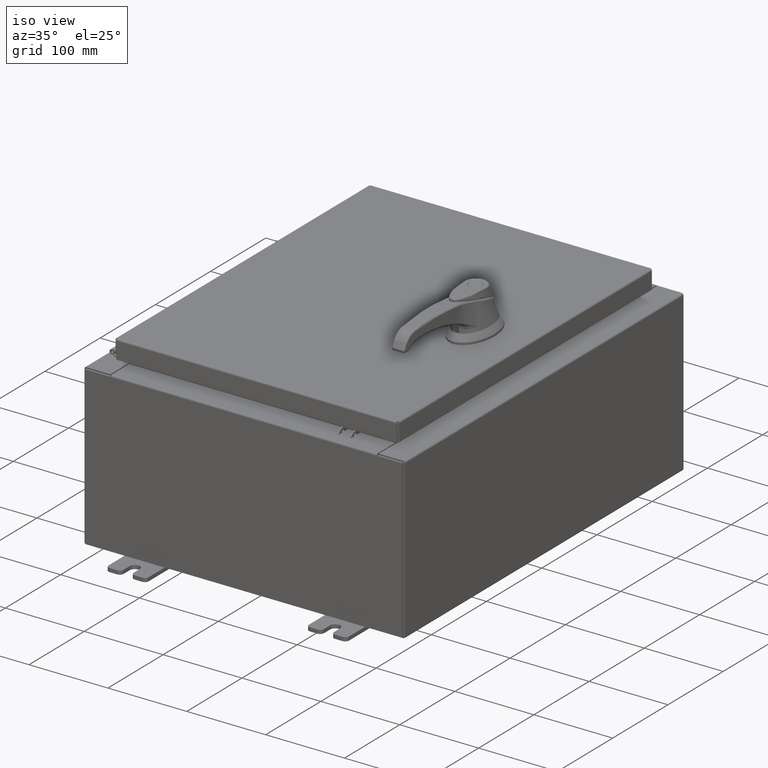
[diagram: clean part render]
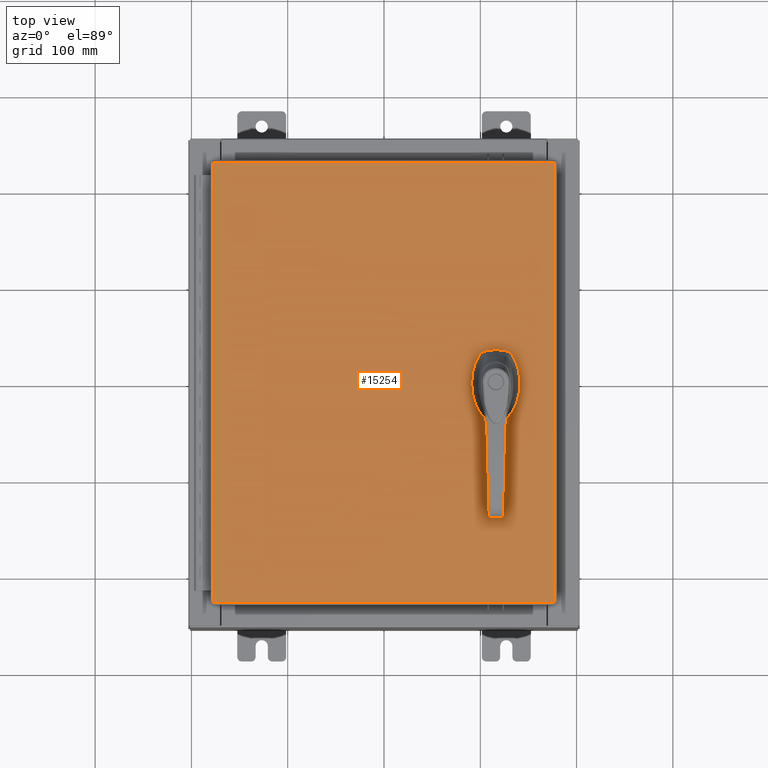
[diagram: tour spotlight — one face highlighted and labeled with its STEP entity id]
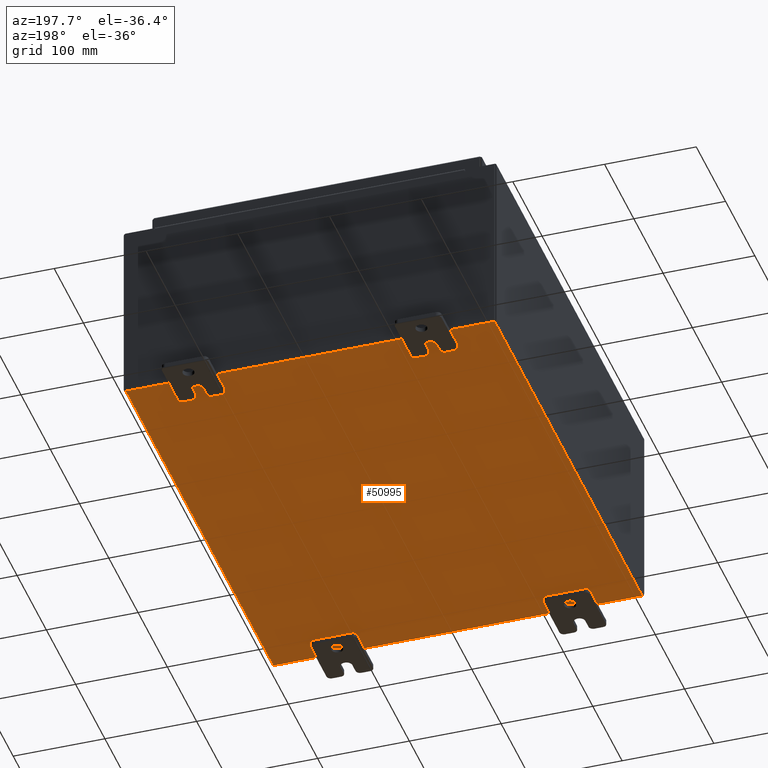
[diagram: tour spotlight — one face highlighted and labeled with its STEP entity id]
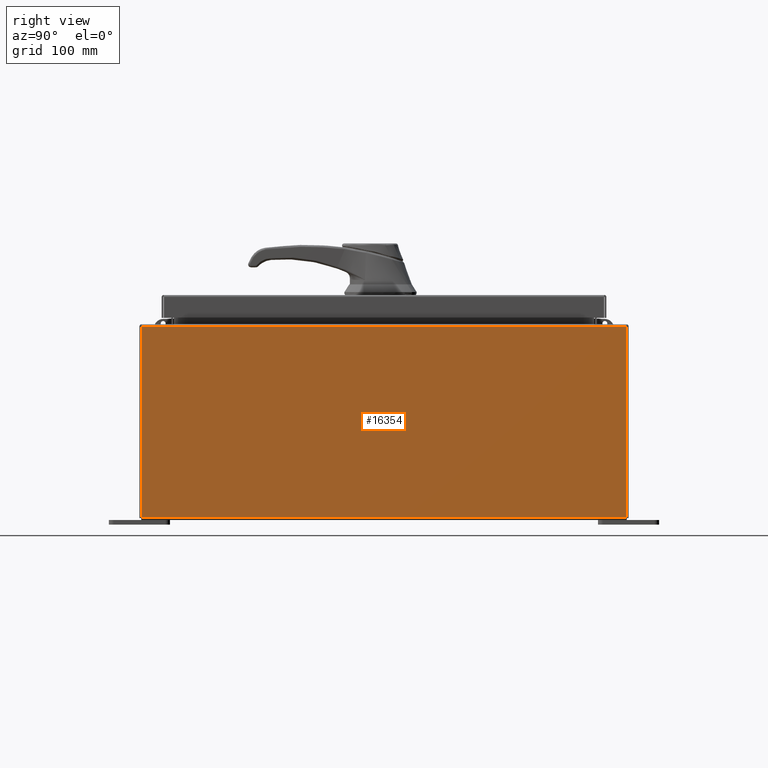
[diagram: tour spotlight — one face highlighted and labeled with its STEP entity id]
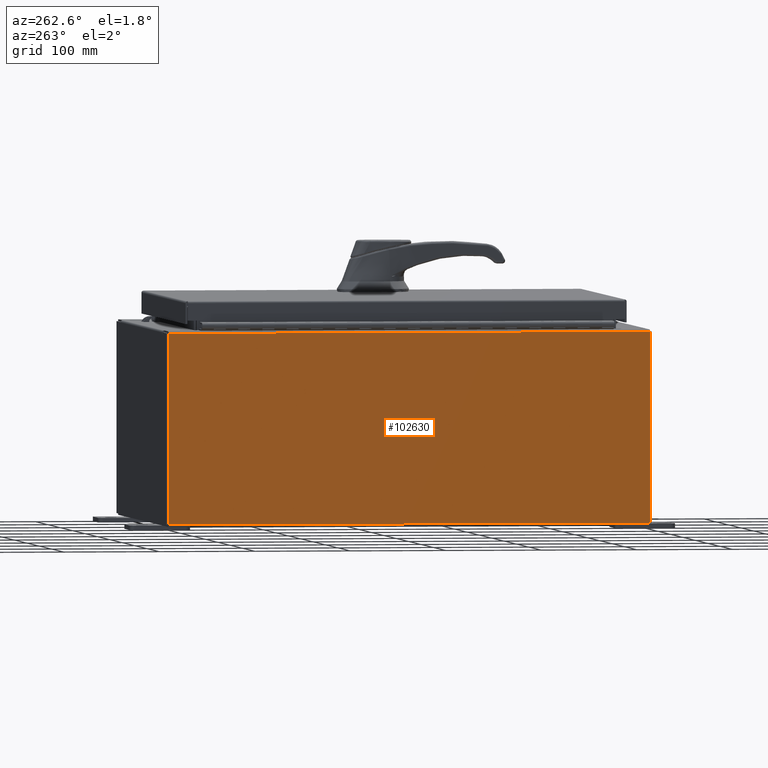
[diagram: tour spotlight — one face highlighted and labeled with its STEP entity id]
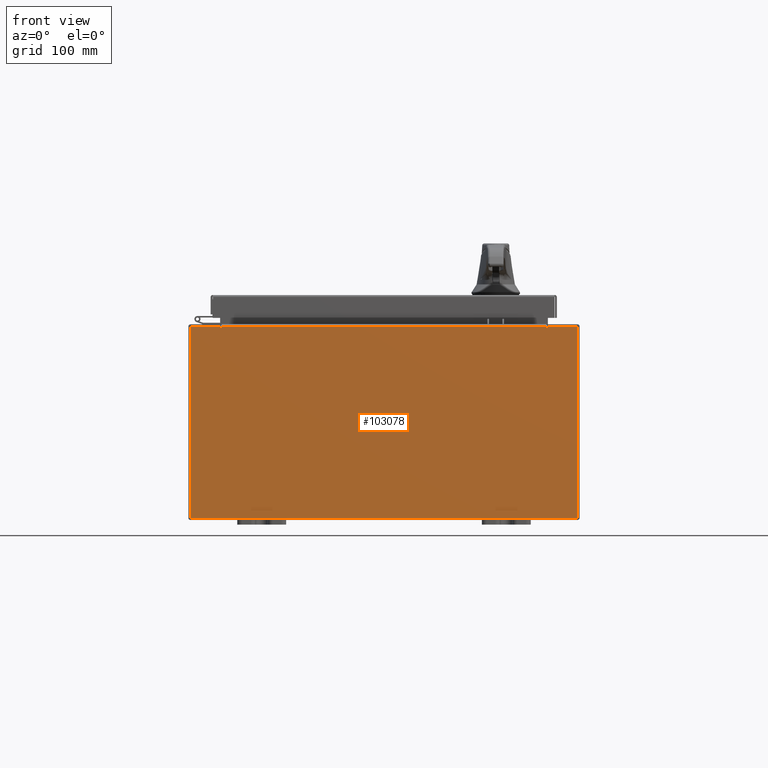
[diagram: tour spotlight — one face highlighted and labeled with its STEP entity id]
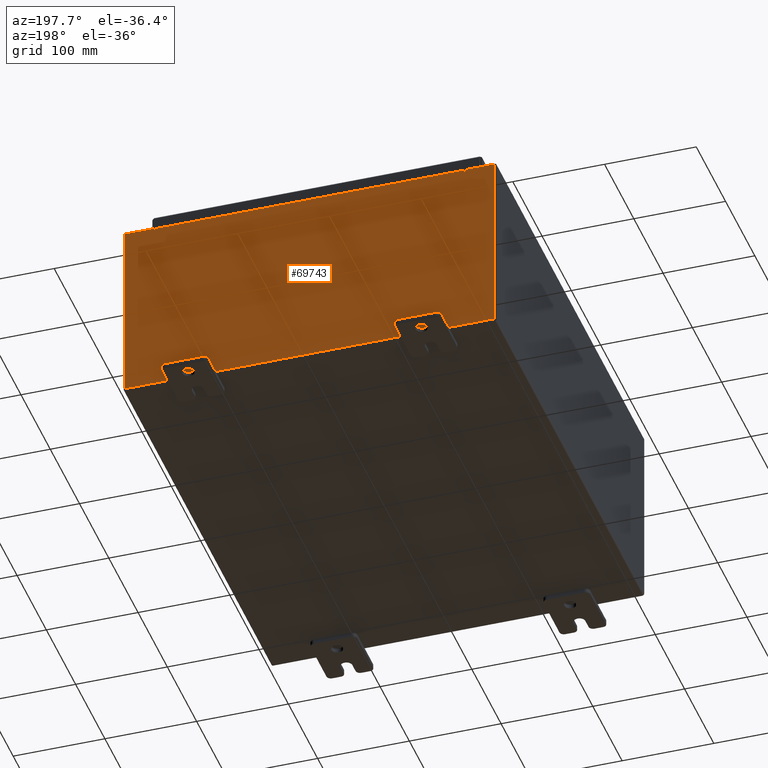
[diagram: tour spotlight — one face highlighted and labeled with its STEP entity id]
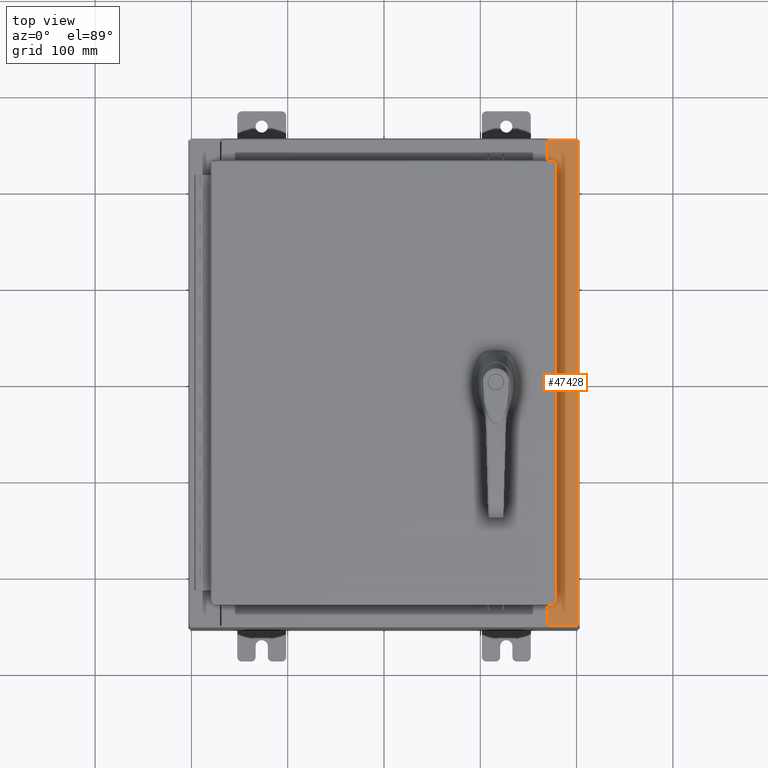
[diagram: tour spotlight — one face highlighted and labeled with its STEP entity id]
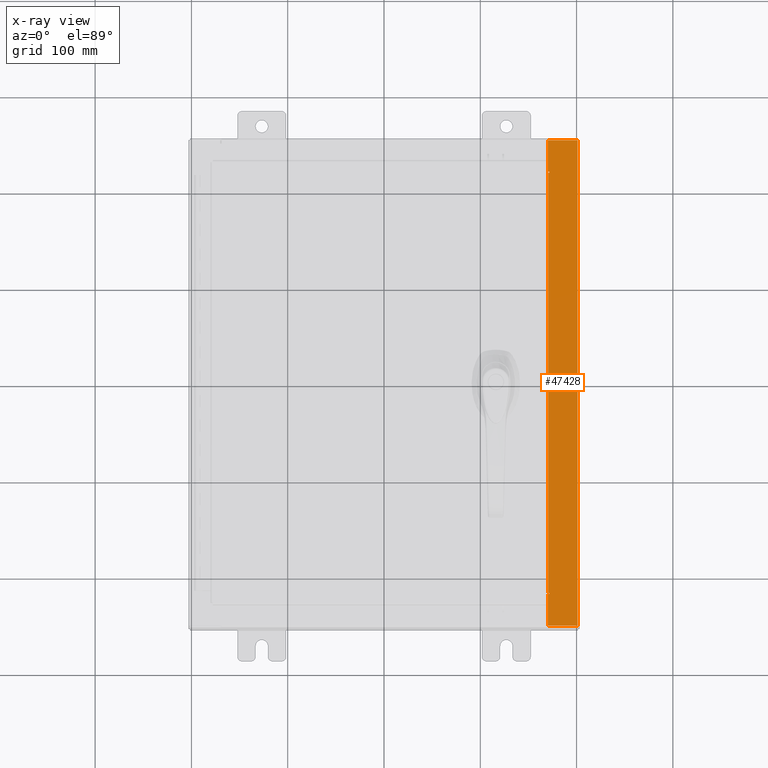
[diagram: x-ray of the same camera — body ghosted, this tour face saturated]
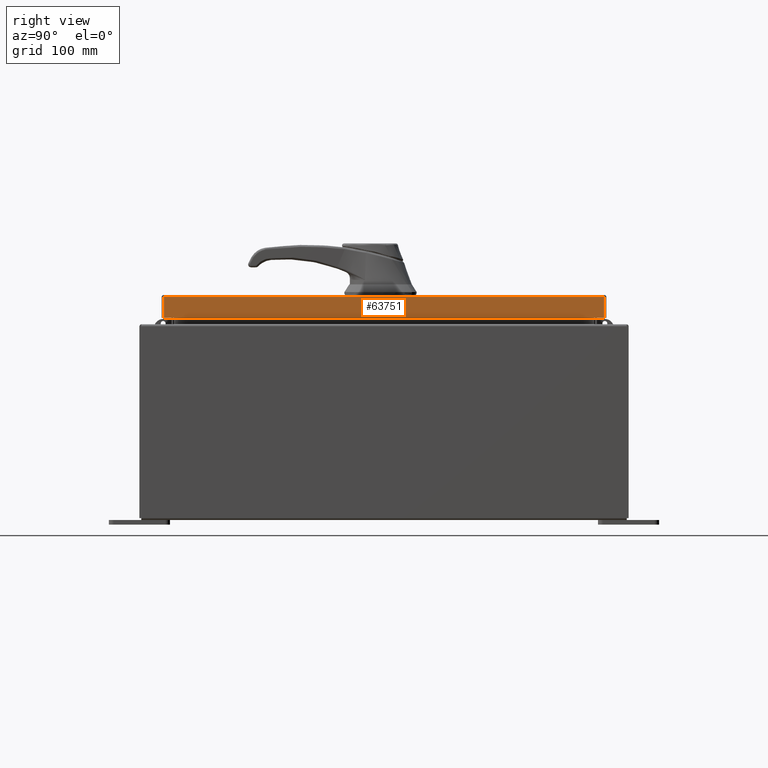
[diagram: tour spotlight — one face highlighted and labeled with its STEP entity id]
A machine part: a face-by-face anatomy tour. The part has 2316 B-rep faces; the first image is the clean iso view, then the 8 largest visible faces are spotlighted one at a time (largest first), each with its STEP entity span.

Face 1 — top view, entity #15254. In plain terms, the highlighted planar face has unit normal (0, 0, -1).
Definition (entity closure, byte-faithful):
#838 = CARTESIAN_POINT ( 'NONE',  ( 4.377772629243692900, 0.4029999999999252000, 0.0000000000000000000 ) ) ;
#1784 = FACE_BOUND ( 'NONE', #92221, .T. ) ;
#2299 = VECTOR ( 'NONE', #79332, 39.37007874015748100 ) ;
#2374 = LINE ( 'NONE', #60142, #44583 ) ;
#4788 = VERTEX_POINT ( 'NONE', #838 ) ;
#4910 = LINE ( 'NONE', #28449, #2299 ) ;
#5235 = CARTESIAN_POINT ( 'NONE',  ( 4.578000000000002100, 0.0000000000000000000, 0.0000000000000000000 ) ) ;
#5384 = CIRCLE ( 'NONE', #21046, 0.4499999999999156900 ) ;
#6332 = ORIENTED_EDGE ( 'NONE', *, *, #87902, .F. ) ;
#6426 = VERTEX_POINT ( 'NONE', #19562 ) ;
#6888 = DIRECTION ( 'NONE',  ( 0.0000000000000000000, -1.000000000000000000, 0.0000000000000000000 ) ) ;
#7138 = CARTESIAN_POINT ( 'NONE',  ( 6.990300000000002200, 9.006300000000001300, -7.683322482180740400E-016 ) ) ;
#11838 = CARTESIAN_POINT ( 'NONE',  ( -6.990299999999997700, 9.006300000000001300, -2.048885995248197400E-016 ) ) ;
#11924 = CIRCLE ( 'NONE', #13941, 0.4499999999999156900 ) ;
#12631 = EDGE_CURVE ( 'NONE', #30866, #108138, #55210, .T. ) ;
#13635 = AXIS2_PLACEMENT_3D ( 'NONE', #79661, #29171, #88155 ) ;
#13689 = DIRECTION ( 'NONE',  ( 1.000000000000000000, 0.0000000000000000000, 0.0000000000000000000 ) ) ;
#13941 = AXIS2_PLACEMENT_3D ( 'NONE', #26086, #85113, #34580 ) ;
#14770 = DIRECTION ( 'NONE',  ( -0.0000000000000000000, 0.0000000000000000000, 1.000000000000000000 ) ) ;
#15065 = CARTESIAN_POINT ( 'NONE',  ( 6.990300000000002200, -9.006299999999997800, -2.219626494852214000E-016 ) ) ;
#15254 = ADVANCED_FACE ( 'NONE', ( #41345, #86212, #1784 ), #82752, .F. ) ;
#18044 = AXIS2_PLACEMENT_3D ( 'NONE', #65848, #40746, #99706 ) ;
#18453 = CARTESIAN_POINT ( 'NONE',  ( 4.578000000000002100, -1.338000000000000100, 0.0000000000000000000 ) ) ;
#19324 = VERTEX_POINT ( 'NONE', #52935 ) ;
#19562 = CARTESIAN_POINT ( 'NONE',  ( -6.990299999999997700, -9.006299999999997800, -2.219626494852214000E-016 ) ) ;
#20085 = EDGE_CURVE ( 'NONE', #4788, #76864, #11924, .T. ) ;
#20941 = EDGE_CURVE ( 'NONE', #62381, #23120, #42236, .T. ) ;
#21046 = AXIS2_PLACEMENT_3D ( 'NONE', #5235, #64243, #13689 ) ;
#22111 = CIRCLE ( 'NONE', #75754, 0.1715000000000000700 ) ;
#23120 = VERTEX_POINT ( 'NONE', #40098 ) ;
#23211 = LINE ( 'NONE', #25675, #40385 ) ;
#24541 = ORIENTED_EDGE ( 'NONE', *, *, #25817, .F. ) ;
#25675 = CARTESIAN_POINT ( 'NONE',  ( 0.0000000000000000000, -0.4029999999999252000, 0.0000000000000000000 ) ) ;
#25817 = EDGE_CURVE ( 'NONE', #92862, #98283, #35019, .T. ) ;
#26086 = CARTESIAN_POINT ( 'NONE',  ( 4.578000000000002100, 0.0000000000000000000, 0.0000000000000000000 ) ) ;
#26901 = DIRECTION ( 'NONE',  ( 1.000000000000000000, 0.0000000000000000000, 0.0000000000000000000 ) ) ;
#28022 = EDGE_CURVE ( 'NONE', #83008, #80222, #79630, .T. ) ;
#28449 = CARTESIAN_POINT ( 'NONE',  ( 6.990300000000002200, -9.006299999999997800, -2.219626494852214000E-016 ) ) ;
#29171 = DIRECTION ( 'NONE',  ( -0.0000000000000000000, 0.0000000000000000000, 1.000000000000000000 ) ) ;
#29512 = CARTESIAN_POINT ( 'NONE',  ( 4.980999999999927900, -0.2002273707563079800, 0.0000000000000000000 ) ) ;
#30866 = VERTEX_POINT ( 'NONE', #65823 ) ;
#33234 = ORIENTED_EDGE ( 'NONE', *, *, #20941, .T. ) ;
#34009 = CARTESIAN_POINT ( 'NONE',  ( 4.578000000000002100, 0.0000000000000000000, 0.0000000000000000000 ) ) ;
#34580 = DIRECTION ( 'NONE',  ( 1.000000000000000000, 0.0000000000000000000, 0.0000000000000000000 ) ) ;
#35019 = CIRCLE ( 'NONE', #69426, 0.1715000000000000700 ) ;
#38592 = CARTESIAN_POINT ( 'NONE',  ( -6.990299999999997700, -9.006299999999997800, -2.219626494852214000E-016 ) ) ;
#40098 = CARTESIAN_POINT ( 'NONE',  ( -6.990299999999997700, 9.006300000000001300, -2.048885995248197400E-016 ) ) ;
#40385 = VECTOR ( 'NONE', #76165, 39.37007874015748100 ) ;
#40746 = DIRECTION ( 'NONE',  ( 0.0000000000000000000, 0.0000000000000000000, -1.000000000000000000 ) ) ;
#41345 = FACE_BOUND ( 'NONE', #55603, .T. ) ;
#41562 = EDGE_CURVE ( 'NONE', #99109, #4788, #91032, .T. ) ;
#41957 = CARTESIAN_POINT ( 'NONE',  ( 6.990300000000002200, 9.006300000000001300, -7.683322482180740400E-016 ) ) ;
#42007 = VERTEX_POINT ( 'NONE', #15065 ) ;
#42236 = LINE ( 'NONE', #41957, #104222 ) ;
#42504 = DIRECTION ( 'NONE',  ( 1.000000000000000000, 0.0000000000000000000, 0.0000000000000000000 ) ) ;
#44583 = VECTOR ( 'NONE', #68634, 39.37007874015748100 ) ;
#45190 = VECTOR ( 'NONE', #106069, 39.37007874015748100 ) ;
#48811 = EDGE_CURVE ( 'NONE', #6426, #42007, #70261, .T. ) ;
#49494 = CARTESIAN_POINT ( 'NONE',  ( 4.406500000000002100, -1.338000000000000100, 0.0000000000000000000 ) ) ;
#50784 = ORIENTED_EDGE ( 'NONE', *, *, #86371, .T. ) ;
#52935 = CARTESIAN_POINT ( 'NONE',  ( 4.778227370756312100, -0.4029999999999252000, 0.0000000000000000000 ) ) ;
#53566 = DIRECTION ( 'NONE',  ( 0.0000000000000000000, -1.000000000000000000, 0.0000000000000000000 ) ) ;
#55210 = CIRCLE ( 'NONE', #13635, 0.4499999999999156900 ) ;
#55290 = ORIENTED_EDGE ( 'NONE', *, *, #20085, .F. ) ;
#55603 = EDGE_LOOP ( 'NONE', ( #24541, #86885 ) ) ;
#56206 = CIRCLE ( 'NONE', #84845, 0.4499999999999156900 ) ;
#56360 = ORIENTED_EDGE ( 'NONE', *, *, #48811, .T. ) ;
#57235 = VECTOR ( 'NONE', #6888, 39.37007874015748100 ) ;
#58319 = ORIENTED_EDGE ( 'NONE', *, *, #12631, .F. ) ;
#60142 = CARTESIAN_POINT ( 'NONE',  ( 4.175000000000076200, 0.0000000000000000000, 0.0000000000000000000 ) ) ;
#60820 = EDGE_CURVE ( 'NONE', #19324, #80222, #5384, .T. ) ;
#61858 = VECTOR ( 'NONE', #53566, 39.37007874015748100 ) ;
#62381 = VERTEX_POINT ( 'NONE', #7138 ) ;
#64243 = DIRECTION ( 'NONE',  ( -0.0000000000000000000, 0.0000000000000000000, 1.000000000000000000 ) ) ;
#65048 = EDGE_CURVE ( 'NONE', #23120, #6426, #106679, .T. ) ;
#65339 = CARTESIAN_POINT ( 'NONE',  ( 4.578000000000002100, -1.338000000000000100, 0.0000000000000000000 ) ) ;
#65823 = CARTESIAN_POINT ( 'NONE',  ( 4.175000000000076200, -0.2002273707563079800, 0.0000000000000000000 ) ) ;
#65848 = CARTESIAN_POINT ( 'NONE',  ( 0.0000000000000000000, 0.0000000000000000000, 0.0000000000000000000 ) ) ;
#66250 = CARTESIAN_POINT ( 'NONE',  ( 4.778227370756312100, 0.4029999999999252000, 0.0000000000000000000 ) ) ;
#66897 = ORIENTED_EDGE ( 'NONE', *, *, #41562, .F. ) ;
#67087 = ORIENTED_EDGE ( 'NONE', *, *, #28022, .T. ) ;
#67426 = DIRECTION ( 'NONE',  ( -1.000000000000000000, -0.0000000000000000000, -0.0000000000000000000 ) ) ;
#68634 = DIRECTION ( 'NONE',  ( 0.0000000000000000000, -1.000000000000000000, 0.0000000000000000000 ) ) ;
#69332 = ORIENTED_EDGE ( 'NONE', *, *, #79797, .F. ) ;
#69426 = AXIS2_PLACEMENT_3D ( 'NONE', #65339, #14770, #73766 ) ;
#70261 = LINE ( 'NONE', #38592, #45190 ) ;
#73766 = DIRECTION ( 'NONE',  ( 1.000000000000000000, 0.0000000000000000000, 0.0000000000000000000 ) ) ;
#75754 = AXIS2_PLACEMENT_3D ( 'NONE', #18453, #77393, #26901 ) ;
#76165 = DIRECTION ( 'NONE',  ( 1.000000000000000000, 0.0000000000000000000, 0.0000000000000000000 ) ) ;
#76800 = EDGE_LOOP ( 'NONE', ( #56360, #50784, #33234, #88407 ) ) ;
#76864 = VERTEX_POINT ( 'NONE', #97192 ) ;
#77393 = DIRECTION ( 'NONE',  ( -0.0000000000000000000, 0.0000000000000000000, 1.000000000000000000 ) ) ;
#79332 = DIRECTION ( 'NONE',  ( 0.0000000000000000000, 1.000000000000000000, 0.0000000000000000000 ) ) ;
#79630 = LINE ( 'NONE', #107591, #57235 ) ;
#79661 = CARTESIAN_POINT ( 'NONE',  ( 4.578000000000002100, 0.0000000000000000000, 0.0000000000000000000 ) ) ;
#79797 = EDGE_CURVE ( 'NONE', #83008, #99109, #56206, .T. ) ;
#80222 = VERTEX_POINT ( 'NONE', #29512 ) ;
#81571 = ORIENTED_EDGE ( 'NONE', *, *, #108156, .F. ) ;
#82240 = CARTESIAN_POINT ( 'NONE',  ( 4.749500000000002100, -1.338000000000000100, 0.0000000000000000000 ) ) ;
#82752 = PLANE ( 'NONE',  #18044 ) ;
#83008 = VERTEX_POINT ( 'NONE', #92264 ) ;
#84845 = AXIS2_PLACEMENT_3D ( 'NONE', #34009, #92972, #42504 ) ;
#85113 = DIRECTION ( 'NONE',  ( -0.0000000000000000000, 0.0000000000000000000, 1.000000000000000000 ) ) ;
#85196 = CARTESIAN_POINT ( 'NONE',  ( 4.377772629243692900, -0.4029999999999252000, 0.0000000000000000000 ) ) ;
#86212 = FACE_OUTER_BOUND ( 'NONE', #76800, .T. ) ;
#86371 = EDGE_CURVE ( 'NONE', #42007, #62381, #4910, .T. ) ;
#86885 = ORIENTED_EDGE ( 'NONE', *, *, #108175, .F. ) ;
#87902 = EDGE_CURVE ( 'NONE', #108138, #19324, #23211, .T. ) ;
#88155 = DIRECTION ( 'NONE',  ( 1.000000000000000000, 0.0000000000000000000, 0.0000000000000000000 ) ) ;
#88397 = VECTOR ( 'NONE', #100721, 39.37007874015748100 ) ;
#88407 = ORIENTED_EDGE ( 'NONE', *, *, #65048, .T. ) ;
#91032 = LINE ( 'NONE', #109219, #88397 ) ;
#92221 = EDGE_LOOP ( 'NONE', ( #67087, #103269, #6332, #58319, #81571, #55290, #66897, #69332 ) ) ;
#92264 = CARTESIAN_POINT ( 'NONE',  ( 4.980999999999927900, 0.2002273707563080300, 0.0000000000000000000 ) ) ;
#92862 = VERTEX_POINT ( 'NONE', #82240 ) ;
#92972 = DIRECTION ( 'NONE',  ( -0.0000000000000000000, 0.0000000000000000000, 1.000000000000000000 ) ) ;
#97192 = CARTESIAN_POINT ( 'NONE',  ( 4.175000000000076200, 0.2002273707563079800, 0.0000000000000000000 ) ) ;
#98283 = VERTEX_POINT ( 'NONE', #49494 ) ;
#99109 = VERTEX_POINT ( 'NONE', #66250 ) ;
#99706 = DIRECTION ( 'NONE',  ( -1.000000000000000000, 0.0000000000000000000, -0.0000000000000000000 ) ) ;
#100721 = DIRECTION ( 'NONE',  ( -1.000000000000000000, 0.0000000000000000000, 0.0000000000000000000 ) ) ;
#103269 = ORIENTED_EDGE ( 'NONE', *, *, #60820, .F. ) ;
#104222 = VECTOR ( 'NONE', #67426, 39.37007874015748100 ) ;
#106069 = DIRECTION ( 'NONE',  ( 1.000000000000000000, -0.0000000000000000000, -0.0000000000000000000 ) ) ;
#106679 = LINE ( 'NONE', #11838, #61858 ) ;
#107591 = CARTESIAN_POINT ( 'NONE',  ( 4.980999999999927900, 0.0000000000000000000, 0.0000000000000000000 ) ) ;
#108138 = VERTEX_POINT ( 'NONE', #85196 ) ;
#108156 = EDGE_CURVE ( 'NONE', #76864, #30866, #2374, .T. ) ;
#108175 = EDGE_CURVE ( 'NONE', #98283, #92862, #22111, .T. ) ;
#109219 = CARTESIAN_POINT ( 'NONE',  ( 0.0000000000000000000, 0.4029999999999252000, 0.0000000000000000000 ) ) ;

Face 2 — auxiliary view, entity #50995. In plain terms, the highlighted planar face has unit normal (0, 0, -1).
Definition (entity closure, byte-faithful):
#3492 = VECTOR ( 'NONE', #72826, 39.37007874015748100 ) ;
#7605 = DIRECTION ( 'NONE',  ( 1.000000000000000000, 0.0000000000000000000, 0.0000000000000000000 ) ) ;
#7931 = VERTEX_POINT ( 'NONE', #33308 ) ;
#18070 = ORIENTED_EDGE ( 'NONE', *, *, #65032, .T. ) ;
#19593 = LINE ( 'NONE', #104430, #109357 ) ;
#19626 = AXIS2_PLACEMENT_3D ( 'NONE', #99999, #49541, #108533 ) ;
#23285 = EDGE_CURVE ( 'NONE', #101616, #29705, #80166, .T. ) ;
#24057 = PLANE ( 'NONE',  #19626 ) ;
#24579 = CARTESIAN_POINT ( 'NONE',  ( -7.999999999999997300, -9.925300000000001800, -0.07470000000000000300 ) ) ;
#29705 = VERTEX_POINT ( 'NONE', #57214 ) ;
#33308 = CARTESIAN_POINT ( 'NONE',  ( 7.912300000000001900, 9.925299999999996500, -0.07469999999999994700 ) ) ;
#38285 = ORIENTED_EDGE ( 'NONE', *, *, #79042, .F. ) ;
#38398 = VECTOR ( 'NONE', #105862, 39.37007874015748100 ) ;
#44197 = ORIENTED_EDGE ( 'NONE', *, *, #50509, .T. ) ;
#45418 = DIRECTION ( 'NONE',  ( -0.0000000000000000000, -1.000000000000000000, -0.0000000000000000000 ) ) ;
#49541 = DIRECTION ( 'NONE',  ( 0.0000000000000000000, 0.0000000000000000000, -1.000000000000000000 ) ) ;
#50509 = EDGE_CURVE ( 'NONE', #101616, #58705, #63493, .T. ) ;
#50995 = ADVANCED_FACE ( 'NONE', ( #93727 ), #24057, .T. ) ;
#54716 = CARTESIAN_POINT ( 'NONE',  ( -7.912299999999997400, 9.925299999999998200, -0.07470000000000000300 ) ) ;
#57214 = CARTESIAN_POINT ( 'NONE',  ( 7.912300000000001900, -9.925300000000001800, -0.07470000000000000300 ) ) ;
#58705 = VERTEX_POINT ( 'NONE', #54716 ) ;
#63493 = LINE ( 'NONE', #97346, #38398 ) ;
#64376 = CARTESIAN_POINT ( 'NONE',  ( -7.999999999999997300, 9.925299999999998200, -0.07470000000000000300 ) ) ;
#65032 = EDGE_CURVE ( 'NONE', #7931, #29705, #19593, .T. ) ;
#70813 = LINE ( 'NONE', #64376, #3492 ) ;
#72826 = DIRECTION ( 'NONE',  ( -1.000000000000000000, -0.0000000000000000000, -0.0000000000000000000 ) ) ;
#77509 = VECTOR ( 'NONE', #7605, 39.37007874015748100 ) ;
#79042 = EDGE_CURVE ( 'NONE', #7931, #58705, #70813, .T. ) ;
#80166 = LINE ( 'NONE', #24579, #77509 ) ;
#81618 = CARTESIAN_POINT ( 'NONE',  ( -7.912299999999997400, -9.925300000000000000, -0.07469999999999994700 ) ) ;
#93727 = FACE_OUTER_BOUND ( 'NONE', #101402, .T. ) ;
#97346 = CARTESIAN_POINT ( 'NONE',  ( -7.912299999999997400, -9.925300000000001800, -0.07469999999999994700 ) ) ;
#99999 = CARTESIAN_POINT ( 'NONE',  ( 0.0000000000000000000, 0.0000000000000000000, -0.07470000000000000300 ) ) ;
#101402 = EDGE_LOOP ( 'NONE', ( #105725, #44197, #38285, #18070 ) ) ;
#101616 = VERTEX_POINT ( 'NONE', #81618 ) ;
#104430 = CARTESIAN_POINT ( 'NONE',  ( 7.912300000000001900, 9.925299999999998200, -0.07469999999999994700 ) ) ;
#105725 = ORIENTED_EDGE ( 'NONE', *, *, #23285, .F. ) ;
#105862 = DIRECTION ( 'NONE',  ( -0.0000000000000000000, 1.000000000000000000, -0.0000000000000000000 ) ) ;
#108533 = DIRECTION ( 'NONE',  ( -1.000000000000000000, 0.0000000000000000000, -0.0000000000000000000 ) ) ;
#109357 = VECTOR ( 'NONE', #45418, 39.37007874015748100 ) ;

Face 3 — right view, entity #16354. In plain terms, the highlighted planar face has unit normal (-1, 0, 0).
Definition (entity closure, byte-faithful):
#3080 = CARTESIAN_POINT ( 'NONE',  ( 8.000000000000001800, 9.925299999999998200, -2.783678421777468900E-014 ) ) ;
#4146 = CARTESIAN_POINT ( 'NONE',  ( 8.000000000000001800, -9.925300000000001800, 0.01299999999999984700 ) ) ;
#6687 = VERTEX_POINT ( 'NONE', #7712 ) ;
#7712 = CARTESIAN_POINT ( 'NONE',  ( 8.000000000000001800, 9.925299999999996500, 0.01299999999999984700 ) ) ;
#16016 = CARTESIAN_POINT ( 'NONE',  ( 8.000000000000030200, 9.925299999999991100, 7.837599999999999200 ) ) ;
#16023 = VERTEX_POINT ( 'NONE', #46912 ) ;
#16354 = ADVANCED_FACE ( 'NONE', ( #75490 ), #67538, .F. ) ;
#16785 = CARTESIAN_POINT ( 'NONE',  ( 8.000000000000030200, 9.925299999999992900, 7.837599999999999200 ) ) ;
#18992 = VECTOR ( 'NONE', #46207, 39.37007874015748100 ) ;
#20038 = DIRECTION ( 'NONE',  ( 3.446996320220387700E-015, 0.0000000000000000000, 1.000000000000000000 ) ) ;
#21357 = CARTESIAN_POINT ( 'NONE',  ( 8.000000000000030200, -9.925300000000001800, 7.837599999999999200 ) ) ;
#29702 = EDGE_LOOP ( 'NONE', ( #64497, #60515, #105822, #45791 ) ) ;
#33949 = CARTESIAN_POINT ( 'NONE',  ( 8.000000000000001800, 0.0000000000000000000, -2.783678421777468900E-014 ) ) ;
#34051 = LINE ( 'NONE', #41212, #36649 ) ;
#36649 = VECTOR ( 'NONE', #49703, 39.37007874015748100 ) ;
#41212 = CARTESIAN_POINT ( 'NONE',  ( 8.000000000000001800, -9.925300000000001800, -2.783678421777468900E-014 ) ) ;
#42457 = DIRECTION ( 'NONE',  ( 3.446996320220386900E-015, 0.0000000000000000000, 1.000000000000000000 ) ) ;
#44443 = LINE ( 'NONE', #16785, #86648 ) ;
#45791 = ORIENTED_EDGE ( 'NONE', *, *, #55384, .T. ) ;
#46207 = DIRECTION ( 'NONE',  ( -0.0000000000000000000, -1.000000000000000000, -0.0000000000000000000 ) ) ;
#46912 = CARTESIAN_POINT ( 'NONE',  ( 8.000000000000001800, -9.925300000000001800, 0.01299999999999984800 ) ) ;
#49703 = DIRECTION ( 'NONE',  ( -3.446996320220387700E-015, 0.0000000000000000000, -1.000000000000000000 ) ) ;
#52203 = LINE ( 'NONE', #3080, #74550 ) ;
#55384 = EDGE_CURVE ( 'NONE', #6687, #67938, #52203, .T. ) ;
#60515 = ORIENTED_EDGE ( 'NONE', *, *, #85527, .T. ) ;
#64497 = ORIENTED_EDGE ( 'NONE', *, *, #77085, .T. ) ;
#67538 = PLANE ( 'NONE',  #70381 ) ;
#67938 = VERTEX_POINT ( 'NONE', #16016 ) ;
#70381 = AXIS2_PLACEMENT_3D ( 'NONE', #33949, #92924, #42457 ) ;
#74550 = VECTOR ( 'NONE', #20038, 39.37007874015748100 ) ;
#75490 = FACE_OUTER_BOUND ( 'NONE', #29702, .T. ) ;
#77085 = EDGE_CURVE ( 'NONE', #67938, #98631, #44443, .T. ) ;
#84267 = DIRECTION ( 'NONE',  ( -0.0000000000000000000, -1.000000000000000000, -0.0000000000000000000 ) ) ;
#85527 = EDGE_CURVE ( 'NONE', #98631, #16023, #34051, .T. ) ;
#86648 = VECTOR ( 'NONE', #84267, 39.37007874015748100 ) ;
#92924 = DIRECTION ( 'NONE',  ( -1.000000000000000000, 0.0000000000000000000, 3.446996320220386900E-015 ) ) ;
#98631 = VERTEX_POINT ( 'NONE', #21357 ) ;
#104250 = EDGE_CURVE ( 'NONE', #6687, #16023, #106066, .T. ) ;
#105822 = ORIENTED_EDGE ( 'NONE', *, *, #104250, .F. ) ;
#106066 = LINE ( 'NONE', #4146, #18992 ) ;

Face 4 — auxiliary view, entity #102630. In plain terms, the highlighted planar face has unit normal (1, 0, 0).
Definition (entity closure, byte-faithful):
#713 = FACE_OUTER_BOUND ( 'NONE', #30196, .T. ) ;
#6346 = VECTOR ( 'NONE', #43952, 39.37007874015748100 ) ;
#14981 = ORIENTED_EDGE ( 'NONE', *, *, #66448, .T. ) ;
#16973 = EDGE_CURVE ( 'NONE', #51347, #108588, #85997, .T. ) ;
#19759 = AXIS2_PLACEMENT_3D ( 'NONE', #41338, #100682, #50232 ) ;
#24718 = PLANE ( 'NONE',  #19759 ) ;
#24746 = ORIENTED_EDGE ( 'NONE', *, *, #43265, .T. ) ;
#28829 = LINE ( 'NONE', #77431, #6346 ) ;
#28925 = ORIENTED_EDGE ( 'NONE', *, *, #87340, .F. ) ;
#30196 = EDGE_LOOP ( 'NONE', ( #24746, #78079, #28925, #14981 ) ) ;
#35021 = DIRECTION ( 'NONE',  ( -0.0000000000000000000, 1.000000000000000000, -0.0000000000000000000 ) ) ;
#41338 = CARTESIAN_POINT ( 'NONE',  ( -7.999999999999997300, 0.0000000000000000000, -2.783678421777467300E-014 ) ) ;
#43265 = EDGE_CURVE ( 'NONE', #54508, #51347, #28829, .T. ) ;
#43952 = DIRECTION ( 'NONE',  ( 0.0000000000000000000, 1.000000000000000000, 0.0000000000000000000 ) ) ;
#46394 = VERTEX_POINT ( 'NONE', #98110 ) ;
#50232 = DIRECTION ( 'NONE',  ( 3.446996320220386900E-015, 0.0000000000000000000, -1.000000000000000000 ) ) ;
#50462 = DIRECTION ( 'NONE',  ( -3.446996320220387700E-015, 0.0000000000000000000, 1.000000000000000000 ) ) ;
#51347 = VERTEX_POINT ( 'NONE', #61274 ) ;
#54508 = VERTEX_POINT ( 'NONE', #66193 ) ;
#61274 = CARTESIAN_POINT ( 'NONE',  ( -8.000000000000024900, 9.925299999999996500, 7.837599999999999200 ) ) ;
#63560 = VECTOR ( 'NONE', #105144, 39.37007874015748100 ) ;
#63855 = CARTESIAN_POINT ( 'NONE',  ( -7.999999999999997300, 9.925299999999998200, -2.783678421777467300E-014 ) ) ;
#63867 = CARTESIAN_POINT ( 'NONE',  ( -7.999999999999997300, 9.925299999999998200, 0.01299999999999984800 ) ) ;
#65645 = VECTOR ( 'NONE', #50462, 39.37007874015748100 ) ;
#66193 = CARTESIAN_POINT ( 'NONE',  ( -8.000000000000024900, -9.925300000000000000, 7.837599999999999200 ) ) ;
#66448 = EDGE_CURVE ( 'NONE', #46394, #54508, #93321, .T. ) ;
#77431 = CARTESIAN_POINT ( 'NONE',  ( -8.000000000000024900, -9.925300000000000000, 7.837599999999999200 ) ) ;
#78079 = ORIENTED_EDGE ( 'NONE', *, *, #16973, .T. ) ;
#85997 = LINE ( 'NONE', #63855, #63560 ) ;
#87340 = EDGE_CURVE ( 'NONE', #46394, #108588, #91886, .T. ) ;
#91886 = LINE ( 'NONE', #93991, #94517 ) ;
#93321 = LINE ( 'NONE', #100910, #65645 ) ;
#93991 = CARTESIAN_POINT ( 'NONE',  ( -7.999999999999997300, 9.925299999999998200, 0.01299999999999984700 ) ) ;
#94517 = VECTOR ( 'NONE', #35021, 39.37007874015748100 ) ;
#98110 = CARTESIAN_POINT ( 'NONE',  ( -7.999999999999997300, -9.925300000000000000, 0.01299999999999984700 ) ) ;
#100682 = DIRECTION ( 'NONE',  ( 1.000000000000000000, 0.0000000000000000000, 3.446996320220386900E-015 ) ) ;
#100910 = CARTESIAN_POINT ( 'NONE',  ( -7.999999999999997300, -9.925300000000001800, -2.783678421777467300E-014 ) ) ;
#102630 = ADVANCED_FACE ( 'NONE', ( #713 ), #24718, .F. ) ;
#105144 = DIRECTION ( 'NONE',  ( 3.446996320220387700E-015, 0.0000000000000000000, -1.000000000000000000 ) ) ;
#108588 = VERTEX_POINT ( 'NONE', #63867 ) ;

Face 5 — front view, entity #103078. In plain terms, the highlighted planar face has unit normal (-0, 1, -0).
Definition (entity closure, byte-faithful):
#128 = VERTEX_POINT ( 'NONE', #61014 ) ;
#515 = EDGE_CURVE ( 'NONE', #46186, #88255, #36514, .T. ) ;
#2252 = LINE ( 'NONE', #45814, #41817 ) ;
#2345 = CARTESIAN_POINT ( 'NONE',  ( -6.655875000000000900, 0.0000000000000000000, 3.874949999999999200 ) ) ;
#3779 = DIRECTION ( 'NONE',  ( -1.000000000000000000, -0.0000000000000000000, -0.0000000000000000000 ) ) ;
#4256 = VERTEX_POINT ( 'NONE', #81737 ) ;
#4353 = CARTESIAN_POINT ( 'NONE',  ( 6.637199999999999100, 0.0000000000000000000, 0.0000000000000000000 ) ) ;
#4466 = CARTESIAN_POINT ( 'NONE',  ( 7.925300000000000000, 0.0000000000000000000, -3.925300000000000500 ) ) ;
#9022 = CARTESIAN_POINT ( 'NONE',  ( -6.637200000000000900, -0.0000000000000000000, 3.874949999999999200 ) ) ;
#9963 = CARTESIAN_POINT ( 'NONE',  ( -7.925300000000000000, 0.0000000000000000000, -3.925300000000000500 ) ) ;
#10797 = DIRECTION ( 'NONE',  ( 0.0000000000000000000, 0.0000000000000000000, -1.000000000000000000 ) ) ;
#10977 = CARTESIAN_POINT ( 'NONE',  ( -7.925300000000000000, 0.0000000000000000000, 3.925299999999999100 ) ) ;
#11977 = AXIS2_PLACEMENT_3D ( 'NONE', #87360, #36828, #95795 ) ;
#15667 = EDGE_CURVE ( 'NONE', #48993, #83804, #90091, .T. ) ;
#16161 = ORIENTED_EDGE ( 'NONE', *, *, #47930, .T. ) ;
#16177 = VECTOR ( 'NONE', #83680, 39.37007874015748100 ) ;
#19531 = LINE ( 'NONE', #4353, #64416 ) ;
#20024 = EDGE_CURVE ( 'NONE', #91029, #42359, #104327, .T. ) ;
#20675 = ORIENTED_EDGE ( 'NONE', *, *, #20024, .F. ) ;
#21275 = VECTOR ( 'NONE', #102288, 39.37007874015748100 ) ;
#25497 = VECTOR ( 'NONE', #61524, 39.37007874015748100 ) ;
#30153 = VECTOR ( 'NONE', #98564, 39.37007874015748100 ) ;
#30292 = CARTESIAN_POINT ( 'NONE',  ( 6.674549999999999100, 0.0000000000000000000, 3.925299999999999100 ) ) ;
#30624 = EDGE_LOOP ( 'NONE', ( #39886, #33663, #64714, #94055, #84108, #20675, #78060, #94249, #95752, #71812, #16161, #54527 ) ) ;
#31691 = VERTEX_POINT ( 'NONE', #4466 ) ;
#33663 = ORIENTED_EDGE ( 'NONE', *, *, #15667, .F. ) ;
#36280 = CARTESIAN_POINT ( 'NONE',  ( 6.674549999999914700, -0.0000000000000000000, -1.448568502570924200E-013 ) ) ;
#36514 = LINE ( 'NONE', #92316, #106470 ) ;
#36828 = DIRECTION ( 'NONE',  ( 0.0000000000000000000, -1.000000000000000000, 0.0000000000000000000 ) ) ;
#39615 = CARTESIAN_POINT ( 'NONE',  ( 7.925300000000000000, 0.0000000000000000000, 3.925299999999999100 ) ) ;
#39886 = ORIENTED_EDGE ( 'NONE', *, *, #92428, .F. ) ;
#41606 = CARTESIAN_POINT ( 'NONE',  ( 6.655874999999998200, 0.0000000000000000000, 3.874949999999999200 ) ) ;
#41817 = VECTOR ( 'NONE', #3779, 39.37007874015748100 ) ;
#42359 = VERTEX_POINT ( 'NONE', #94655 ) ;
#42988 = EDGE_CURVE ( 'NONE', #100392, #91029, #44718, .T. ) ;
#43315 = CARTESIAN_POINT ( 'NONE',  ( -7.925300000000000000, 0.0000000000000000000, 3.925299999999999100 ) ) ;
#44718 = LINE ( 'NONE', #36280, #64508 ) ;
#45177 = VECTOR ( 'NONE', #108582, 39.37007874015748100 ) ;
#45814 = CARTESIAN_POINT ( 'NONE',  ( -7.925300000000000000, 0.0000000000000000000, -3.925300000000000500 ) ) ;
#46186 = VERTEX_POINT ( 'NONE', #68330 ) ;
#47930 = EDGE_CURVE ( 'NONE', #68765, #46186, #90125, .T. ) ;
#48474 = EDGE_CURVE ( 'NONE', #128, #48993, #63697, .T. ) ;
#48993 = VERTEX_POINT ( 'NONE', #9022 ) ;
#50131 = DIRECTION ( 'NONE',  ( 0.0000000000000000000, 0.0000000000000000000, -1.000000000000000000 ) ) ;
#54527 = ORIENTED_EDGE ( 'NONE', *, *, #515, .T. ) ;
#54903 = DIRECTION ( 'NONE',  ( 0.0000000000000000000, 0.0000000000000000000, 1.000000000000000000 ) ) ;
#58088 = CARTESIAN_POINT ( 'NONE',  ( -6.674550000000000900, -0.0000000000000000000, 0.0000000000000000000 ) ) ;
#60422 = EDGE_CURVE ( 'NONE', #100392, #4256, #91205, .T. ) ;
#60680 = CARTESIAN_POINT ( 'NONE',  ( 6.674549999999999100, 0.0000000000000000000, 3.874949999999999200 ) ) ;
#61014 = CARTESIAN_POINT ( 'NONE',  ( -6.637200000000000900, -1.707404996040164500E-016, 3.912299999999999200 ) ) ;
#61344 = DIRECTION ( 'NONE',  ( -0.0000000000000000000, 1.000000000000000000, -0.0000000000000000000 ) ) ;
#61524 = DIRECTION ( 'NONE',  ( -0.0000000000000000000, -0.0000000000000000000, 1.000000000000000000 ) ) ;
#63697 = LINE ( 'NONE', #75537, #16177 ) ;
#64416 = VECTOR ( 'NONE', #54903, 39.37007874015748100 ) ;
#64508 = VECTOR ( 'NONE', #107754, 39.37007874015748100 ) ;
#64714 = ORIENTED_EDGE ( 'NONE', *, *, #48474, .F. ) ;
#65422 = CARTESIAN_POINT ( 'NONE',  ( -6.674550000000000900, 0.0000000000000000000, 3.925299999999999100 ) ) ;
#66887 = VECTOR ( 'NONE', #75395, 39.37007874015748100 ) ;
#68330 = CARTESIAN_POINT ( 'NONE',  ( -7.925300000000000000, 0.0000000000000000000, 3.925299999999999100 ) ) ;
#68765 = VERTEX_POINT ( 'NONE', #9963 ) ;
#70249 = LINE ( 'NONE', #58088, #45177 ) ;
#71812 = ORIENTED_EDGE ( 'NONE', *, *, #107695, .T. ) ;
#72011 = CARTESIAN_POINT ( 'NONE',  ( 6.637199999999999100, 0.0000000000000000000, 3.912299999999999200 ) ) ;
#74872 = EDGE_CURVE ( 'NONE', #4256, #31691, #94776, .T. ) ;
#75395 = DIRECTION ( 'NONE',  ( 1.000000000000000000, 0.0000000000000000000, 0.0000000000000000000 ) ) ;
#75537 = CARTESIAN_POINT ( 'NONE',  ( -6.637200000000000900, -0.0000000000000000000, 0.0000000000000000000 ) ) ;
#77058 = EDGE_CURVE ( 'NONE', #128, #82769, #91929, .T. ) ;
#78060 = ORIENTED_EDGE ( 'NONE', *, *, #42988, .F. ) ;
#81737 = CARTESIAN_POINT ( 'NONE',  ( 7.925300000000000000, 0.0000000000000000000, 3.925299999999999100 ) ) ;
#82769 = VERTEX_POINT ( 'NONE', #72011 ) ;
#83680 = DIRECTION ( 'NONE',  ( 0.0000000000000000000, 0.0000000000000000000, -1.000000000000000000 ) ) ;
#83804 = VERTEX_POINT ( 'NONE', #108722 ) ;
#84108 = ORIENTED_EDGE ( 'NONE', *, *, #85452, .F. ) ;
#85452 = EDGE_CURVE ( 'NONE', #42359, #82769, #19531, .T. ) ;
#87360 = CARTESIAN_POINT ( 'NONE',  ( 0.0000000000000000000, 0.0000000000000000000, 0.0000000000000000000 ) ) ;
#88255 = VERTEX_POINT ( 'NONE', #65422 ) ;
#89575 = AXIS2_PLACEMENT_3D ( 'NONE', #41606, #100600, #50131 ) ;
#90091 = CIRCLE ( 'NONE', #97150, 0.01867500000000003900 ) ;
#90125 = LINE ( 'NONE', #10977, #25497 ) ;
#91029 = VERTEX_POINT ( 'NONE', #60680 ) ;
#91205 = LINE ( 'NONE', #43315, #21275 ) ;
#91929 = LINE ( 'NONE', #100505, #66887 ) ;
#92316 = CARTESIAN_POINT ( 'NONE',  ( -7.925300000000000000, 0.0000000000000000000, 3.925299999999999100 ) ) ;
#92428 = EDGE_CURVE ( 'NONE', #83804, #88255, #70249, .T. ) ;
#94055 = ORIENTED_EDGE ( 'NONE', *, *, #77058, .T. ) ;
#94249 = ORIENTED_EDGE ( 'NONE', *, *, #60422, .T. ) ;
#94299 = FACE_OUTER_BOUND ( 'NONE', #30624, .T. ) ;
#94655 = CARTESIAN_POINT ( 'NONE',  ( 6.637199999999997300, 0.0000000000000000000, 3.874949999999999200 ) ) ;
#94776 = LINE ( 'NONE', #39615, #30153 ) ;
#95446 = PLANE ( 'NONE',  #11977 ) ;
#95752 = ORIENTED_EDGE ( 'NONE', *, *, #74872, .T. ) ;
#95795 = DIRECTION ( 'NONE',  ( 0.0000000000000000000, -0.0000000000000000000, -1.000000000000000000 ) ) ;
#97150 = AXIS2_PLACEMENT_3D ( 'NONE', #2345, #61344, #10797 ) ;
#98564 = DIRECTION ( 'NONE',  ( 0.0000000000000000000, 0.0000000000000000000, -1.000000000000000000 ) ) ;
#100392 = VERTEX_POINT ( 'NONE', #30292 ) ;
#100505 = CARTESIAN_POINT ( 'NONE',  ( -6.637200000000000900, -1.707404996040164500E-016, 3.912299999999999200 ) ) ;
#100600 = DIRECTION ( 'NONE',  ( -0.0000000000000000000, 1.000000000000000000, -0.0000000000000000000 ) ) ;
#100783 = DIRECTION ( 'NONE',  ( 1.000000000000000000, 0.0000000000000000000, 0.0000000000000000000 ) ) ;
#102288 = DIRECTION ( 'NONE',  ( 1.000000000000000000, 0.0000000000000000000, 0.0000000000000000000 ) ) ;
#103078 = ADVANCED_FACE ( 'NONE', ( #94299 ), #95446, .F. ) ;
#104327 = CIRCLE ( 'NONE', #89575, 0.01867500000000003900 ) ;
#106470 = VECTOR ( 'NONE', #100783, 39.37007874015748100 ) ;
#107695 = EDGE_CURVE ( 'NONE', #31691, #68765, #2252, .T. ) ;
#107754 = DIRECTION ( 'NONE',  ( -2.170286390200002500E-014, 0.0000000000000000000, -1.000000000000000000 ) ) ;
#108582 = DIRECTION ( 'NONE',  ( 0.0000000000000000000, 0.0000000000000000000, 1.000000000000000000 ) ) ;
#108722 = CARTESIAN_POINT ( 'NONE',  ( -6.674550000000000900, 0.0000000000000000000, 3.874949999999999200 ) ) ;

Face 6 — auxiliary view, entity #69743. In plain terms, the highlighted planar face has unit normal (0, -1, 0).
Definition (entity closure, byte-faithful):
#1595 = ORIENTED_EDGE ( 'NONE', *, *, #15673, .F. ) ;
#3031 = CIRCLE ( 'NONE', #108521, 0.01867500000000003900 ) ;
#5016 = EDGE_CURVE ( 'NONE', #74905, #92751, #46816, .T. ) ;
#5143 = ORIENTED_EDGE ( 'NONE', *, *, #99724, .F. ) ;
#5862 = PLANE ( 'NONE',  #49821 ) ;
#7170 = DIRECTION ( 'NONE',  ( -0.0000000000000000000, 1.000000000000000000, -0.0000000000000000000 ) ) ;
#7593 = ORIENTED_EDGE ( 'NONE', *, *, #76083, .F. ) ;
#8372 = CARTESIAN_POINT ( 'NONE',  ( 6.674549999999999100, 0.0000000000000000000, 3.925299999999999100 ) ) ;
#11141 = CARTESIAN_POINT ( 'NONE',  ( 7.925300000000000000, 0.0000000000000000000, 3.925299999999999100 ) ) ;
#12342 = CARTESIAN_POINT ( 'NONE',  ( -6.674550000000000900, -0.0000000000000000000, 0.0000000000000000000 ) ) ;
#12674 = DIRECTION ( 'NONE',  ( -2.170286390200002500E-014, 0.0000000000000000000, -1.000000000000000000 ) ) ;
#12897 = VERTEX_POINT ( 'NONE', #37843 ) ;
#12928 = DIRECTION ( 'NONE',  ( 1.000000000000000000, 0.0000000000000000000, 0.0000000000000000000 ) ) ;
#13381 = ORIENTED_EDGE ( 'NONE', *, *, #56744, .T. ) ;
#13531 = CARTESIAN_POINT ( 'NONE',  ( 6.674549999999999100, 0.0000000000000000000, 3.874949999999999200 ) ) ;
#14502 = CARTESIAN_POINT ( 'NONE',  ( -6.637200000000000900, -1.707404996040164500E-016, 3.912299999999999200 ) ) ;
#15673 = EDGE_CURVE ( 'NONE', #12897, #87625, #3031, .T. ) ;
#16629 = EDGE_LOOP ( 'NONE', ( #5143, #1595, #7593, #105879, #99578, #60003, #97323, #25714, #47321, #103862, #53432, #13381 ) ) ;
#16931 = CARTESIAN_POINT ( 'NONE',  ( 0.0000000000000000000, 0.0000000000000000000, 0.0000000000000000000 ) ) ;
#20955 = VERTEX_POINT ( 'NONE', #8372 ) ;
#21408 = CARTESIAN_POINT ( 'NONE',  ( -6.637200000000000900, -1.707404996040164500E-016, 3.912299999999999200 ) ) ;
#21479 = VECTOR ( 'NONE', #46223, 39.37007874015748100 ) ;
#21670 = CARTESIAN_POINT ( 'NONE',  ( -6.674550000000000900, 0.0000000000000000000, 3.874949999999999200 ) ) ;
#22145 = CARTESIAN_POINT ( 'NONE',  ( 6.637199999999999100, 0.0000000000000000000, 3.912299999999999200 ) ) ;
#23409 = LINE ( 'NONE', #12342, #48521 ) ;
#24104 = FACE_OUTER_BOUND ( 'NONE', #16629, .T. ) ;
#25403 = DIRECTION ( 'NONE',  ( 0.0000000000000000000, -1.000000000000000000, 0.0000000000000000000 ) ) ;
#25714 = ORIENTED_EDGE ( 'NONE', *, *, #104983, .T. ) ;
#26507 = EDGE_CURVE ( 'NONE', #31057, #92751, #67964, .T. ) ;
#27770 = DIRECTION ( 'NONE',  ( -0.0000000000000000000, 1.000000000000000000, -0.0000000000000000000 ) ) ;
#29445 = CARTESIAN_POINT ( 'NONE',  ( -7.925300000000000000, 0.0000000000000000000, -3.925300000000000500 ) ) ;
#31057 = VERTEX_POINT ( 'NONE', #101537 ) ;
#32326 = EDGE_CURVE ( 'NONE', #96667, #99134, #60751, .T. ) ;
#33426 = CARTESIAN_POINT ( 'NONE',  ( -7.925300000000000000, 0.0000000000000000000, 3.925299999999999100 ) ) ;
#35844 = VERTEX_POINT ( 'NONE', #71294 ) ;
#37843 = CARTESIAN_POINT ( 'NONE',  ( -6.637200000000000900, -0.0000000000000000000, 3.874949999999999200 ) ) ;
#38074 = VECTOR ( 'NONE', #12674, 39.37007874015748100 ) ;
#39426 = CARTESIAN_POINT ( 'NONE',  ( 6.637199999999999100, 0.0000000000000000000, 0.0000000000000000000 ) ) ;
#40301 = CIRCLE ( 'NONE', #93577, 0.01867500000000003900 ) ;
#43482 = CARTESIAN_POINT ( 'NONE',  ( -6.674550000000000900, 0.0000000000000000000, 3.925299999999999100 ) ) ;
#44557 = VECTOR ( 'NONE', #49769, 39.37007874015748100 ) ;
#44865 = VERTEX_POINT ( 'NONE', #84993 ) ;
#46223 = DIRECTION ( 'NONE',  ( -0.0000000000000000000, -0.0000000000000000000, 1.000000000000000000 ) ) ;
#46816 = LINE ( 'NONE', #21408, #66618 ) ;
#47321 = ORIENTED_EDGE ( 'NONE', *, *, #107560, .T. ) ;
#47929 = DIRECTION ( 'NONE',  ( 0.0000000000000000000, 0.0000000000000000000, 1.000000000000000000 ) ) ;
#48521 = VECTOR ( 'NONE', #71394, 39.37007874015748100 ) ;
#48546 = VERTEX_POINT ( 'NONE', #43482 ) ;
#49769 = DIRECTION ( 'NONE',  ( 0.0000000000000000000, 0.0000000000000000000, -1.000000000000000000 ) ) ;
#49821 = AXIS2_PLACEMENT_3D ( 'NONE', #16931, #25403, #84417 ) ;
#51964 = VECTOR ( 'NONE', #100523, 39.37007874015748100 ) ;
#53432 = ORIENTED_EDGE ( 'NONE', *, *, #58654, .T. ) ;
#55027 = CARTESIAN_POINT ( 'NONE',  ( -7.925300000000000000, 0.0000000000000000000, 3.925299999999999100 ) ) ;
#55145 = EDGE_CURVE ( 'NONE', #70045, #31057, #40301, .T. ) ;
#56212 = CARTESIAN_POINT ( 'NONE',  ( 6.655874999999998200, 0.0000000000000000000, 3.874949999999999200 ) ) ;
#56744 = EDGE_CURVE ( 'NONE', #35844, #48546, #86340, .T. ) ;
#58654 = EDGE_CURVE ( 'NONE', #99134, #35844, #66382, .T. ) ;
#60003 = ORIENTED_EDGE ( 'NONE', *, *, #55145, .F. ) ;
#60751 = LINE ( 'NONE', #29445, #80486 ) ;
#66233 = DIRECTION ( 'NONE',  ( 0.0000000000000000000, 0.0000000000000000000, -1.000000000000000000 ) ) ;
#66382 = LINE ( 'NONE', #105189, #21479 ) ;
#66618 = VECTOR ( 'NONE', #80388, 39.37007874015748100 ) ;
#67964 = LINE ( 'NONE', #39426, #90336 ) ;
#69743 = ADVANCED_FACE ( 'NONE', ( #24104 ), #5862, .F. ) ;
#70045 = VERTEX_POINT ( 'NONE', #13531 ) ;
#70200 = DIRECTION ( 'NONE',  ( 0.0000000000000000000, 0.0000000000000000000, -1.000000000000000000 ) ) ;
#71294 = CARTESIAN_POINT ( 'NONE',  ( -7.925300000000000000, 0.0000000000000000000, 3.925299999999999100 ) ) ;
#71394 = DIRECTION ( 'NONE',  ( 0.0000000000000000000, 0.0000000000000000000, 1.000000000000000000 ) ) ;
#71716 = CARTESIAN_POINT ( 'NONE',  ( 6.674549999999914700, -0.0000000000000000000, -1.448568502570924200E-013 ) ) ;
#72155 = VECTOR ( 'NONE', #70200, 39.37007874015748100 ) ;
#74742 = EDGE_CURVE ( 'NONE', #20955, #70045, #82948, .T. ) ;
#74775 = LINE ( 'NONE', #11141, #72155 ) ;
#74905 = VERTEX_POINT ( 'NONE', #14502 ) ;
#76083 = EDGE_CURVE ( 'NONE', #74905, #12897, #86760, .T. ) ;
#78262 = CARTESIAN_POINT ( 'NONE',  ( -6.655875000000000900, 0.0000000000000000000, 3.874949999999999200 ) ) ;
#79922 = DIRECTION ( 'NONE',  ( -1.000000000000000000, -0.0000000000000000000, -0.0000000000000000000 ) ) ;
#80388 = DIRECTION ( 'NONE',  ( 1.000000000000000000, 0.0000000000000000000, 0.0000000000000000000 ) ) ;
#80486 = VECTOR ( 'NONE', #79922, 39.37007874015748100 ) ;
#82948 = LINE ( 'NONE', #71716, #38074 ) ;
#83174 = CARTESIAN_POINT ( 'NONE',  ( -7.925300000000000000, 0.0000000000000000000, -3.925300000000000500 ) ) ;
#84417 = DIRECTION ( 'NONE',  ( 0.0000000000000000000, -0.0000000000000000000, -1.000000000000000000 ) ) ;
#84993 = CARTESIAN_POINT ( 'NONE',  ( 7.925300000000000000, 0.0000000000000000000, 3.925299999999999100 ) ) ;
#86340 = LINE ( 'NONE', #55027, #106111 ) ;
#86757 = DIRECTION ( 'NONE',  ( 0.0000000000000000000, 0.0000000000000000000, -1.000000000000000000 ) ) ;
#86760 = LINE ( 'NONE', #108758, #44557 ) ;
#87625 = VERTEX_POINT ( 'NONE', #21670 ) ;
#90336 = VECTOR ( 'NONE', #47929, 39.37007874015748100 ) ;
#91465 = LINE ( 'NONE', #33426, #51964 ) ;
#92751 = VERTEX_POINT ( 'NONE', #22145 ) ;
#93577 = AXIS2_PLACEMENT_3D ( 'NONE', #56212, #7170, #66233 ) ;
#96667 = VERTEX_POINT ( 'NONE', #107646 ) ;
#97323 = ORIENTED_EDGE ( 'NONE', *, *, #74742, .F. ) ;
#99134 = VERTEX_POINT ( 'NONE', #83174 ) ;
#99578 = ORIENTED_EDGE ( 'NONE', *, *, #26507, .F. ) ;
#99724 = EDGE_CURVE ( 'NONE', #87625, #48546, #23409, .T. ) ;
#100523 = DIRECTION ( 'NONE',  ( 1.000000000000000000, 0.0000000000000000000, 0.0000000000000000000 ) ) ;
#101537 = CARTESIAN_POINT ( 'NONE',  ( 6.637199999999997300, 0.0000000000000000000, 3.874949999999999200 ) ) ;
#103862 = ORIENTED_EDGE ( 'NONE', *, *, #32326, .T. ) ;
#104983 = EDGE_CURVE ( 'NONE', #20955, #44865, #91465, .T. ) ;
#105189 = CARTESIAN_POINT ( 'NONE',  ( -7.925300000000000000, 0.0000000000000000000, 3.925299999999999100 ) ) ;
#105879 = ORIENTED_EDGE ( 'NONE', *, *, #5016, .T. ) ;
#106111 = VECTOR ( 'NONE', #12928, 39.37007874015748100 ) ;
#107560 = EDGE_CURVE ( 'NONE', #44865, #96667, #74775, .T. ) ;
#107646 = CARTESIAN_POINT ( 'NONE',  ( 7.925300000000000000, 0.0000000000000000000, -3.925300000000000500 ) ) ;
#108521 = AXIS2_PLACEMENT_3D ( 'NONE', #78262, #27770, #86757 ) ;
#108758 = CARTESIAN_POINT ( 'NONE',  ( -6.637200000000000900, -0.0000000000000000000, 0.0000000000000000000 ) ) ;

Face 7 — top view, entity #47428. An x-ray twin of the same camera follows (body ghosted, this face saturated) — the face is partly hidden behind the body. In plain terms, the highlighted planar face has unit normal (-0, 0, -1).
Definition (entity closure, byte-faithful):
#70 = EDGE_CURVE ( 'NONE', #3368, #67609, #80106, .T. ) ;
#594 = EDGE_LOOP ( 'NONE', ( #40612, #64618, #56120, #20681, #20740, #97040, #98966, #4248, #3630, #4502, #52938, #99612 ) ) ;
#1186 = CARTESIAN_POINT ( 'NONE',  ( 6.699700000000029300, 8.631099999999994700, 7.925300000000008900 ) ) ;
#2174 = LINE ( 'NONE', #8692, #19308 ) ;
#2777 = CARTESIAN_POINT ( 'NONE',  ( 5.679009539018269400E-014, 9.925299999999996500, 7.925300000000056900 ) ) ;
#3368 = VERTEX_POINT ( 'NONE', #26074 ) ;
#3396 = CARTESIAN_POINT ( 'NONE',  ( 6.750050000000032700, 8.593749999999992900, 7.925300000000008900 ) ) ;
#3630 = ORIENTED_EDGE ( 'NONE', *, *, #83445, .F. ) ;
#4248 = ORIENTED_EDGE ( 'NONE', *, *, #49181, .F. ) ;
#4502 = ORIENTED_EDGE ( 'NONE', *, *, #5022, .F. ) ;
#5022 = EDGE_CURVE ( 'NONE', #50330, #82283, #89004, .T. ) ;
#5228 = CARTESIAN_POINT ( 'NONE',  ( 6.750050000000032700, 8.631099999999994700, 7.925300000000008900 ) ) ;
#6353 = CARTESIAN_POINT ( 'NONE',  ( 7.912300000000029400, -9.925300000000001800, 7.925300000000000000 ) ) ;
#6851 = VERTEX_POINT ( 'NONE', #17692 ) ;
#7161 = DIRECTION ( 'NONE',  ( 1.000000000000000000, 0.0000000000000000000, 0.0000000000000000000 ) ) ;
#7434 = EDGE_CURVE ( 'NONE', #58425, #6851, #76837, .T. ) ;
#8692 = CARTESIAN_POINT ( 'NONE',  ( 6.699700000000030200, 7.376124450909251200E-016, 7.925300000000008900 ) ) ;
#12416 = VECTOR ( 'NONE', #65409, 39.37007874015748100 ) ;
#12874 = DIRECTION ( 'NONE',  ( -0.0000000000000000000, 1.000000000000000000, -0.0000000000000000000 ) ) ;
#12884 = DIRECTION ( 'NONE',  ( -7.132762385546378400E-015, 0.0000000000000000000, -1.000000000000000000 ) ) ;
#15795 = VERTEX_POINT ( 'NONE', #3396 ) ;
#17545 = VECTOR ( 'NONE', #58364, 39.37007874015748100 ) ;
#17692 = CARTESIAN_POINT ( 'NONE',  ( 6.699700000000029300, 9.925299999999992900, 7.925300000000008900 ) ) ;
#19308 = VECTOR ( 'NONE', #67737, 39.37007874015748100 ) ;
#19310 = VECTOR ( 'NONE', #105630, 39.37007874015748100 ) ;
#19700 = CARTESIAN_POINT ( 'NONE',  ( 6.750050000000032700, 8.612424999999992900, 7.925300000000008900 ) ) ;
#20681 = ORIENTED_EDGE ( 'NONE', *, *, #89855, .F. ) ;
#20740 = ORIENTED_EDGE ( 'NONE', *, *, #7434, .T. ) ;
#21715 = VECTOR ( 'NONE', #12874, 39.37007874015748100 ) ;
#21926 = LINE ( 'NONE', #55121, #19310 ) ;
#23520 = VECTOR ( 'NONE', #105803, 39.37007874015748100 ) ;
#26074 = CARTESIAN_POINT ( 'NONE',  ( 6.750050000000032700, -8.631100000000005300, 7.925300000000008900 ) ) ;
#27684 = EDGE_CURVE ( 'NONE', #104375, #79874, #78341, .T. ) ;
#28184 = DIRECTION ( 'NONE',  ( 1.000000000000000000, 0.0000000000000000000, 0.0000000000000000000 ) ) ;
#29530 = CARTESIAN_POINT ( 'NONE',  ( 6.712700000000032800, -8.593750000000005300, 7.925300000000008900 ) ) ;
#32838 = DIRECTION ( 'NONE',  ( -1.000000000000000000, 0.0000000000000000000, 0.0000000000000000000 ) ) ;
#34660 = VECTOR ( 'NONE', #53314, 39.37007874015748100 ) ;
#36087 = EDGE_CURVE ( 'NONE', #6851, #79874, #84840, .T. ) ;
#36400 = AXIS2_PLACEMENT_3D ( 'NONE', #54642, #12884, #71917 ) ;
#38117 = VERTEX_POINT ( 'NONE', #97223 ) ;
#40354 = CARTESIAN_POINT ( 'NONE',  ( 6.750050000000032700, -8.593750000000005300, 7.925300000000008900 ) ) ;
#40612 = ORIENTED_EDGE ( 'NONE', *, *, #55695, .F. ) ;
#43322 = VECTOR ( 'NONE', #32838, 39.37007874015748100 ) ;
#45765 = EDGE_CURVE ( 'NONE', #73663, #38117, #21926, .T. ) ;
#45976 = LINE ( 'NONE', #97282, #23520 ) ;
#46507 = PLANE ( 'NONE',  #36400 ) ;
#47428 = ADVANCED_FACE ( 'NONE', ( #69114 ), #46507, .F. ) ;
#49181 = EDGE_CURVE ( 'NONE', #15795, #104375, #51791, .T. ) ;
#49867 = CARTESIAN_POINT ( 'NONE',  ( 6.699700000000030200, 7.376124450909251200E-016, 7.925300000000008900 ) ) ;
#50330 = VERTEX_POINT ( 'NONE', #53560 ) ;
#51791 = CIRCLE ( 'NONE', #109307, 0.01867499999999949400 ) ;
#52938 = ORIENTED_EDGE ( 'NONE', *, *, #65473, .F. ) ;
#53314 = DIRECTION ( 'NONE',  ( -1.000000000000000000, 0.0000000000000000000, 7.132762385546378400E-015 ) ) ;
#53560 = CARTESIAN_POINT ( 'NONE',  ( 6.712700000000032800, -8.593750000000005300, 7.925300000000008900 ) ) ;
#54642 = CARTESIAN_POINT ( 'NONE',  ( 5.679009539018269400E-014, 0.0000000000000000000, 7.925300000000056900 ) ) ;
#55121 = CARTESIAN_POINT ( 'NONE',  ( 5.679009539018269400E-014, -9.925300000000001800, 7.925300000000056900 ) ) ;
#55695 = EDGE_CURVE ( 'NONE', #59258, #3368, #64021, .T. ) ;
#56120 = ORIENTED_EDGE ( 'NONE', *, *, #45765, .T. ) ;
#57729 = DIRECTION ( 'NONE',  ( 7.132762385546378400E-015, 0.0000000000000000000, 1.000000000000000000 ) ) ;
#57936 = CARTESIAN_POINT ( 'NONE',  ( 6.750050000000032700, -8.593750000000005300, 7.925300000000008900 ) ) ;
#57996 = CARTESIAN_POINT ( 'NONE',  ( 6.699700000000031100, -8.631100000000005300, 7.925300000000008900 ) ) ;
#58364 = DIRECTION ( 'NONE',  ( 1.100963394019027800E-016, -1.000000000000000000, -7.852910284722398000E-031 ) ) ;
#58425 = VERTEX_POINT ( 'NONE', #77550 ) ;
#59258 = VERTEX_POINT ( 'NONE', #94522 ) ;
#64021 = LINE ( 'NONE', #57996, #89068 ) ;
#64618 = ORIENTED_EDGE ( 'NONE', *, *, #101235, .T. ) ;
#65409 = DIRECTION ( 'NONE',  ( -0.0000000000000000000, -1.000000000000000000, -0.0000000000000000000 ) ) ;
#65473 = EDGE_CURVE ( 'NONE', #67609, #50330, #65760, .T. ) ;
#65760 = LINE ( 'NONE', #57936, #43322 ) ;
#67609 = VERTEX_POINT ( 'NONE', #40354 ) ;
#67737 = DIRECTION ( 'NONE',  ( 1.100963394019027800E-016, -1.000000000000000000, -7.852910284722398000E-031 ) ) ;
#69114 = FACE_OUTER_BOUND ( 'NONE', #594, .T. ) ;
#71917 = DIRECTION ( 'NONE',  ( -1.000000000000000000, 0.0000000000000000000, 7.132762385546378400E-015 ) ) ;
#73663 = VERTEX_POINT ( 'NONE', #85771 ) ;
#74346 = AXIS2_PLACEMENT_3D ( 'NONE', #108256, #57729, #7161 ) ;
#76837 = LINE ( 'NONE', #2777, #34660 ) ;
#77074 = LINE ( 'NONE', #6353, #12416 ) ;
#77550 = CARTESIAN_POINT ( 'NONE',  ( 7.912300000000029400, 9.925299999999991100, 7.925300000000000000 ) ) ;
#78341 = LINE ( 'NONE', #93648, #98119 ) ;
#78663 = DIRECTION ( 'NONE',  ( 7.132762385546378400E-015, 0.0000000000000000000, 1.000000000000000000 ) ) ;
#79874 = VERTEX_POINT ( 'NONE', #1186 ) ;
#80106 = CIRCLE ( 'NONE', #74346, 0.01867499999999949400 ) ;
#82283 = VERTEX_POINT ( 'NONE', #104604 ) ;
#83445 = EDGE_CURVE ( 'NONE', #82283, #15795, #45976, .T. ) ;
#84840 = LINE ( 'NONE', #49867, #17545 ) ;
#85771 = CARTESIAN_POINT ( 'NONE',  ( 6.699700000000031100, -9.925300000000001800, 7.925300000000008900 ) ) ;
#89004 = LINE ( 'NONE', #29530, #21715 ) ;
#89068 = VECTOR ( 'NONE', #108501, 39.37007874015748100 ) ;
#89855 = EDGE_CURVE ( 'NONE', #58425, #38117, #77074, .T. ) ;
#93648 = CARTESIAN_POINT ( 'NONE',  ( 6.750050000000032700, 8.631099999999994700, 7.925300000000008900 ) ) ;
#94522 = CARTESIAN_POINT ( 'NONE',  ( 6.699700000000031100, -8.631100000000005300, 7.925300000000008900 ) ) ;
#97040 = ORIENTED_EDGE ( 'NONE', *, *, #36087, .T. ) ;
#97223 = CARTESIAN_POINT ( 'NONE',  ( 7.912300000000029400, -9.925300000000001800, 7.925300000000000000 ) ) ;
#97282 = CARTESIAN_POINT ( 'NONE',  ( 6.712700000000032800, 8.593749999999994700, 7.925300000000008900 ) ) ;
#98119 = VECTOR ( 'NONE', #102142, 39.37007874015748100 ) ;
#98966 = ORIENTED_EDGE ( 'NONE', *, *, #27684, .F. ) ;
#99612 = ORIENTED_EDGE ( 'NONE', *, *, #70, .F. ) ;
#101235 = EDGE_CURVE ( 'NONE', #59258, #73663, #2174, .T. ) ;
#102142 = DIRECTION ( 'NONE',  ( -1.000000000000000000, 2.170286390199861100E-014, 0.0000000000000000000 ) ) ;
#104375 = VERTEX_POINT ( 'NONE', #5228 ) ;
#104604 = CARTESIAN_POINT ( 'NONE',  ( 6.712700000000032800, 8.593749999999994700, 7.925300000000008900 ) ) ;
#105630 = DIRECTION ( 'NONE',  ( 1.000000000000000000, 0.0000000000000000000, -7.132762385546378400E-015 ) ) ;
#105803 = DIRECTION ( 'NONE',  ( 1.000000000000000000, 0.0000000000000000000, 0.0000000000000000000 ) ) ;
#108256 = CARTESIAN_POINT ( 'NONE',  ( 6.750050000000032700, -8.612425000000005300, 7.925300000000008900 ) ) ;
#108501 = DIRECTION ( 'NONE',  ( 1.000000000000000000, 2.170286390199955400E-014, 0.0000000000000000000 ) ) ;
#109307 = AXIS2_PLACEMENT_3D ( 'NONE', #19700, #78663, #28184 ) ;

Face 8 — right view, entity #63751. In plain terms, the highlighted planar face has unit normal (1, 0, 0).
Definition (entity closure, byte-faithful):
#7519 = ORIENTED_EDGE ( 'NONE', *, *, #51719, .T. ) ;
#18667 = CARTESIAN_POINT ( 'NONE',  ( 7.078000000000005600, -9.005157864376261800, -0.9376999999999997600 ) ) ;
#21049 = DIRECTION ( 'NONE',  ( 3.798629886902798700E-015, 0.0000000000000000000, -1.000000000000000000 ) ) ;
#21728 = CARTESIAN_POINT ( 'NONE',  ( 7.078000000000005600, 9.005157864376276000, -0.9376999999999997600 ) ) ;
#22209 = FACE_OUTER_BOUND ( 'NONE', #47972, .T. ) ;
#22822 = LINE ( 'NONE', #47148, #39958 ) ;
#23539 = ORIENTED_EDGE ( 'NONE', *, *, #91605, .F. ) ;
#28059 = VECTOR ( 'NONE', #99601, 39.37007874015748100 ) ;
#31652 = VERTEX_POINT ( 'NONE', #105525 ) ;
#31728 = EDGE_CURVE ( 'NONE', #80291, #31652, #72648, .T. ) ;
#39958 = VECTOR ( 'NONE', #106130, 39.37007874015748100 ) ;
#40634 = CARTESIAN_POINT ( 'NONE',  ( 7.078000000000002100, -9.005157864376267100, -0.07469999999999972500 ) ) ;
#40759 = ORIENTED_EDGE ( 'NONE', *, *, #31728, .T. ) ;
#44922 = DIRECTION ( 'NONE',  ( 0.0000000000000000000, -1.000000000000000000, 0.0000000000000000000 ) ) ;
#44979 = VECTOR ( 'NONE', #106234, 39.37007874015748100 ) ;
#46537 = CARTESIAN_POINT ( 'NONE',  ( 7.078000000000002100, 9.005157864376268900, 9.003019726912204800E-014 ) ) ;
#47148 = CARTESIAN_POINT ( 'NONE',  ( 7.078000000000005600, -9.093999999999999400, -0.9376999999999997600 ) ) ;
#47972 = EDGE_LOOP ( 'NONE', ( #95853, #23539, #40759, #7519 ) ) ;
#51719 = EDGE_CURVE ( 'NONE', #31652, #81020, #64673, .T. ) ;
#53736 = VERTEX_POINT ( 'NONE', #18667 ) ;
#54636 = PLANE ( 'NONE',  #65007 ) ;
#58884 = EDGE_CURVE ( 'NONE', #53736, #81020, #100634, .T. ) ;
#63098 = CARTESIAN_POINT ( 'NONE',  ( 7.078000000000002100, 0.0000000000000000000, 2.714751599550960100E-014 ) ) ;
#63751 = ADVANCED_FACE ( 'NONE', ( #22209 ), #54636, .T. ) ;
#64673 = LINE ( 'NONE', #103882, #89723 ) ;
#65007 = AXIS2_PLACEMENT_3D ( 'NONE', #63098, #71572, #21049 ) ;
#67686 = CARTESIAN_POINT ( 'NONE',  ( 7.078000000000002100, -9.005157864376267100, -0.08769999999999997200 ) ) ;
#71572 = DIRECTION ( 'NONE',  ( 1.000000000000000000, 0.0000000000000000000, 3.798629886902798700E-015 ) ) ;
#72648 = LINE ( 'NONE', #46537, #44979 ) ;
#80291 = VERTEX_POINT ( 'NONE', #21728 ) ;
#81020 = VERTEX_POINT ( 'NONE', #67686 ) ;
#89723 = VECTOR ( 'NONE', #44922, 39.37007874015748100 ) ;
#91605 = EDGE_CURVE ( 'NONE', #80291, #53736, #22822, .T. ) ;
#95853 = ORIENTED_EDGE ( 'NONE', *, *, #58884, .F. ) ;
#99601 = DIRECTION ( 'NONE',  ( -3.798629886902798700E-015, -6.982962677686265900E-015, 1.000000000000000000 ) ) ;
#100634 = LINE ( 'NONE', #40634, #28059 ) ;
#103882 = CARTESIAN_POINT ( 'NONE',  ( 7.078000000000002100, 0.0000000000000000000, -0.08769999999999997200 ) ) ;
#105525 = CARTESIAN_POINT ( 'NONE',  ( 7.078000000000002100, 9.005157864376270600, -0.08769999999999997200 ) ) ;
#106130 = DIRECTION ( 'NONE',  ( 0.0000000000000000000, -1.000000000000000000, 0.0000000000000000000 ) ) ;
#106234 = DIRECTION ( 'NONE',  ( -3.798629886902798700E-015, -6.982962677686265900E-015, 1.000000000000000000 ) ) ;